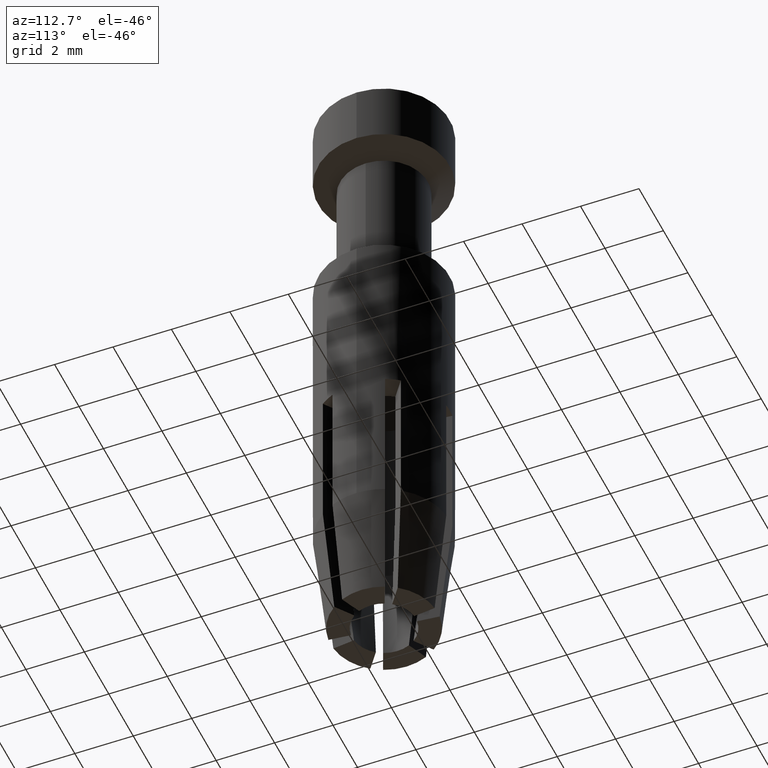
[diagram: clean part render]
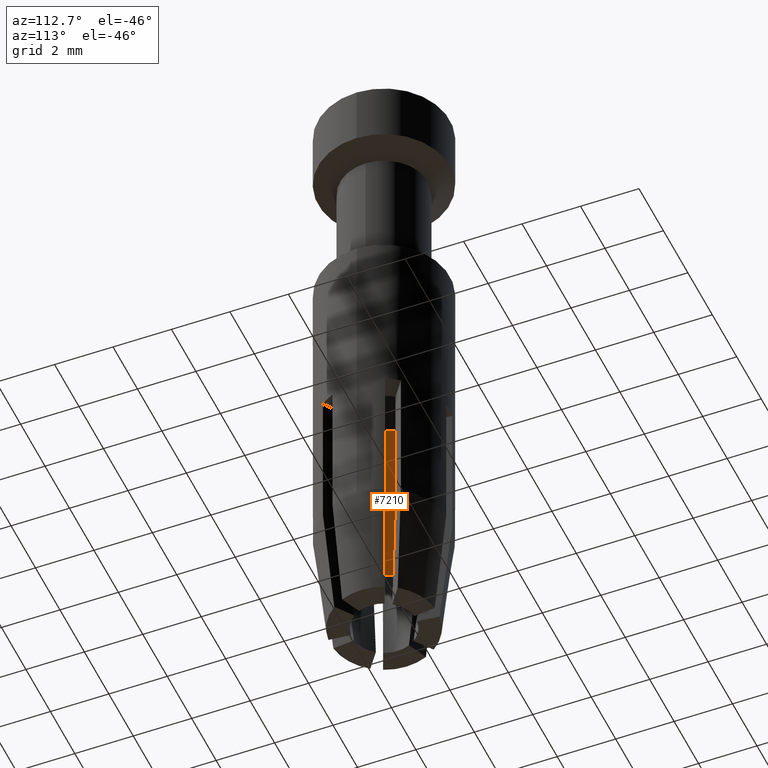
[diagram: same view with one face highlighted and labeled with its STEP entity id]
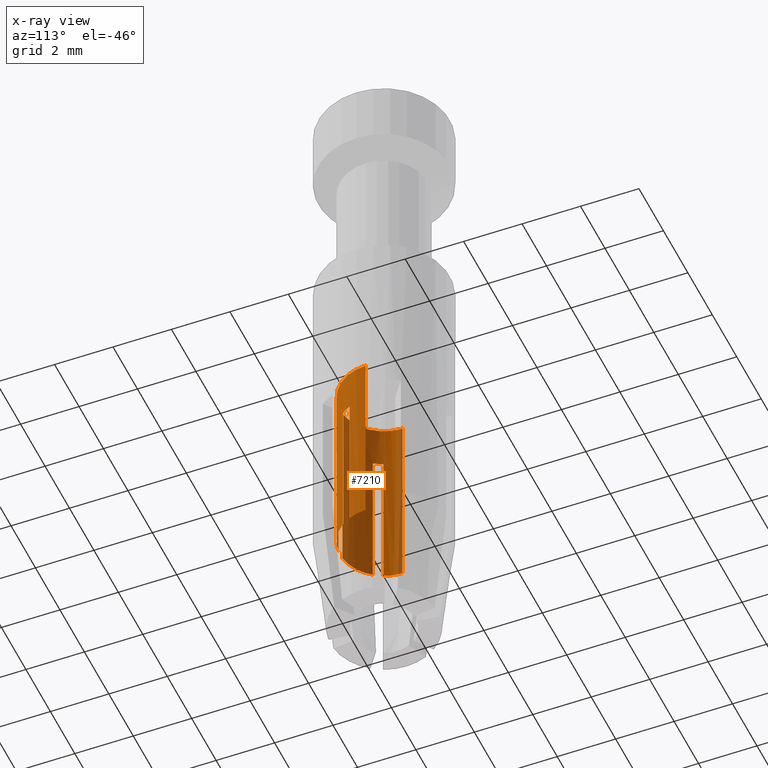
[diagram: x-ray of the same camera — body ghosted, the highlighted face saturated]
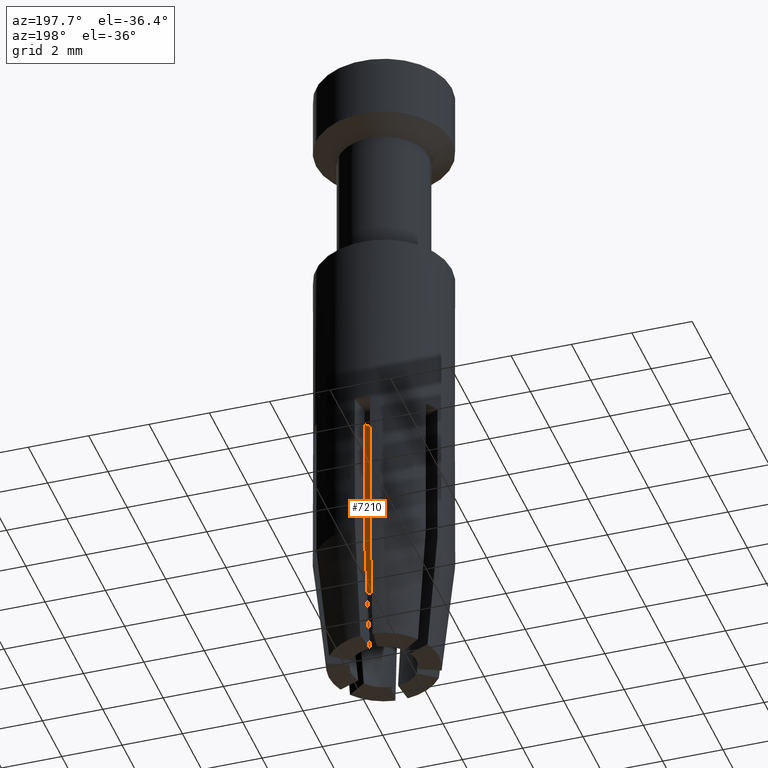
[diagram: same view with one face highlighted and labeled with its STEP entity id]
A machine part, auxiliary view. The second image highlights one B-rep face of the part: STEP entity #7210.
The next image is the same camera in x-ray: the body ghosted, the highlighted face saturated — about 48% of this face is hidden behind the body in this view.
A second angle (auxiliary view) of the same face is appended — the face is thin or edge-on in the first view.
In plain terms, the highlighted cylindrical surface (partial cylindrical patch) has radius 1.5 mm, axis along (0, -0, 1).
Its self-contained STEP definition (entity closure, byte-faithful):
#3600=CARTESIAN_POINT('',(29.5428948845975,41.2843564402027,18.5));
#3610=VERTEX_POINT('',#3600);
#3690=CARTESIAN_POINT('',(29.3762282179308,41.5730315747975,18.5));
#3700=VERTEX_POINT('',#3690);
#3730=CARTESIAN_POINT('',(30.750556,42.17405,18.5));
#3740=DIRECTION('',(0.,0.,-1.));
#3750=DIRECTION('',(-1.,0.,0.));
#3760=AXIS2_PLACEMENT_3D('',#3730,#3740,#3750);
#3770=CIRCLE('',#3760,1.5);
#3780=EDGE_CURVE('',#3610,#3700,#3770,.T.);
#3990=CARTESIAN_POINT('',(32.1248837820691,41.5730315747975,18.5));
#4000=VERTEX_POINT('',#3990);
#4080=CARTESIAN_POINT('',(31.9582171154025,41.2843564402027,18.5));
#4090=VERTEX_POINT('',#4080);
#4120=CARTESIAN_POINT('',(30.750556,42.17405,18.5));
#4130=DIRECTION('',(0.,0.,-1.));
#4140=DIRECTION('',(-1.,0.,0.));
#4150=AXIS2_PLACEMENT_3D('',#4120,#4130,#4140);
#4160=CIRCLE('',#4150,1.5);
#4170=EDGE_CURVE('',#4000,#4090,#4160,.T.);
#4400=CARTESIAN_POINT('',(30.5838893333333,40.6833380150002,
23.5699724410222));
#4410=VERTEX_POINT('',#4400);
#4440=CARTESIAN_POINT('',(30.5838893333333,40.6833380150001,
20.284986220511));
#4450=DIRECTION('',(0.,0.,-1.));
#4460=VECTOR('',#4450,1.);
#4470=LINE('',#4440,#4460);
#4480=CARTESIAN_POINT('',(30.5838893333333,40.6833380150001,18.5));
#4490=VERTEX_POINT('',#4480);
#4500=EDGE_CURVE('',#4410,#4490,#4470,.T.);
#6030=CARTESIAN_POINT('',(30.750556,42.17405,23.5699724410221));
#6040=DIRECTION('',(0.,0.,1.));
#6050=DIRECTION('',(-1.,0.,0.));
#6060=AXIS2_PLACEMENT_3D('',#6030,#6040,#6050);
#6070=CIRCLE('',#6060,1.5);
#6080=CARTESIAN_POINT('',(29.250556,42.17405,23.5699724410221));
#6090=VERTEX_POINT('',#6080);
#6120=CARTESIAN_POINT('',(29.3762282179309,41.5730315747975,
23.5699724410221));
#6130=VERTEX_POINT('',#6120);
#6140=EDGE_CURVE('',#6090,#6130,#6070,.T.);
#6320=CARTESIAN_POINT('',(30.750556,42.17405,20.284986220511));
#6330=DIRECTION('',(0.,0.,-1.));
#6340=DIRECTION('',(-1.,0.,0.));
#6350=AXIS2_PLACEMENT_3D('',#6320,#6330,#6340);
#6360=CYLINDRICAL_SURFACE('',#6350,1.5);
#6370=CARTESIAN_POINT('',(32.250556,42.17405,20.284986220511));
#6380=DIRECTION('',(0.,0.,-1.));
#6390=VECTOR('',#6380,1.);
#6400=LINE('',#6370,#6390);
#6410=CARTESIAN_POINT('',(32.250556,42.17405,23.5699724410221));
#6420=VERTEX_POINT('',#6410);
#6430=CARTESIAN_POINT('',(32.250556,42.17405,16.9999999999999));
#6440=VERTEX_POINT('',#6430);
#6450=EDGE_CURVE('',#6420,#6440,#6400,.T.);
#6460=ORIENTED_EDGE('',*,*,#6450,.T.);
#6470=CARTESIAN_POINT('',(32.1248837820691,41.5730315747975,
23.5699724410221));
#6480=VERTEX_POINT('',#6470);
#6490=EDGE_CURVE('',#6480,#6420,#6070,.T.);
#6500=ORIENTED_EDGE('',*,*,#6490,.T.);
#6510=CARTESIAN_POINT('',(32.1248837820691,41.5730315747975,
20.284986220511));
#6520=DIRECTION('',(0.,0.,-1.));
#6530=VECTOR('',#6520,1.);
#6540=LINE('',#6510,#6530);
#6550=EDGE_CURVE('',#6480,#4000,#6540,.T.);
#6560=ORIENTED_EDGE('',*,*,#6550,.F.);
#6570=ORIENTED_EDGE('',*,*,#4170,.F.);
#6580=CARTESIAN_POINT('',(31.9582171154025,41.2843564402027,
20.284986220511));
#6590=DIRECTION('',(0.,0.,-1.));
#6600=VECTOR('',#6590,1.);
#6610=LINE('',#6580,#6600);
#6620=CARTESIAN_POINT('',(31.9582171154025,41.2843564402027,
23.5699724410221));
#6630=VERTEX_POINT('',#6620);
#6640=EDGE_CURVE('',#6630,#4090,#6610,.T.);
#6650=ORIENTED_EDGE('',*,*,#6640,.T.);
#6660=CARTESIAN_POINT('',(30.9172226666667,40.6833380150001,
23.5699724410221));
#6670=VERTEX_POINT('',#6660);
#6680=EDGE_CURVE('',#6670,#6630,#6070,.T.);
#6690=ORIENTED_EDGE('',*,*,#6680,.T.);
#6700=CARTESIAN_POINT('',(30.9172226666667,40.6833380150001,
20.284986220511));
#6710=DIRECTION('',(0.,0.,-1.));
#6720=VECTOR('',#6710,1.);
#6730=LINE('',#6700,#6720);
#6740=CARTESIAN_POINT('',(30.9172226666667,40.6833380150001,18.5));
#6750=VERTEX_POINT('',#6740);
#6760=EDGE_CURVE('',#6670,#6750,#6730,.T.);
#6770=ORIENTED_EDGE('',*,*,#6760,.F.);
#6780=CARTESIAN_POINT('',(30.750556,42.17405,18.5));
#6790=DIRECTION('',(0.,0.,-1.));
#6800=DIRECTION('',(-1.,0.,0.));
#6810=AXIS2_PLACEMENT_3D('',#6780,#6790,#6800);
#6820=CIRCLE('',#6810,1.5);
#6830=EDGE_CURVE('',#6750,#4490,#6820,.T.);
#6840=ORIENTED_EDGE('',*,*,#6830,.F.);
#6850=ORIENTED_EDGE('',*,*,#4500,.T.);
#6860=CARTESIAN_POINT('',(29.5428948845975,41.2843564402027,
23.5699724410222));
#6870=VERTEX_POINT('',#6860);
#6880=EDGE_CURVE('',#6870,#4410,#6070,.T.);
#6890=ORIENTED_EDGE('',*,*,#6880,.T.);
#6900=CARTESIAN_POINT('',(29.5428948845975,41.2843564402027,
20.284986220511));
#6910=DIRECTION('',(0.,0.,-1.));
#6920=VECTOR('',#6910,1.);
#6930=LINE('',#6900,#6920);
#6940=EDGE_CURVE('',#6870,#3610,#6930,.T.);
#6950=ORIENTED_EDGE('',*,*,#6940,.F.);
#6960=ORIENTED_EDGE('',*,*,#3780,.F.);
#6970=CARTESIAN_POINT('',(29.3762282179309,41.5730315747975,
20.284986220511));
#6980=DIRECTION('',(0.,0.,-1.));
#6990=VECTOR('',#6980,1.);
#7000=LINE('',#6970,#6990);
#7010=EDGE_CURVE('',#6130,#3700,#7000,.T.);
#7020=ORIENTED_EDGE('',*,*,#7010,.T.);
#7030=ORIENTED_EDGE('',*,*,#6140,.T.);
#7040=CARTESIAN_POINT('',(29.250556,42.17405,20.284986220511));
#7050=DIRECTION('',(0.,0.,-1.));
#7060=VECTOR('',#7050,1.);
#7070=LINE('',#7040,#7060);
#7080=CARTESIAN_POINT('',(29.250556,42.17405,16.9999999999999));
#7090=VERTEX_POINT('',#7080);
#7100=EDGE_CURVE('',#6090,#7090,#7070,.T.);
#7110=ORIENTED_EDGE('',*,*,#7100,.F.);
#7120=CARTESIAN_POINT('',(30.750556,42.17405,16.9999999999999));
#7130=DIRECTION('',(0.,0.,1.));
#7140=DIRECTION('',(1.,0.,0.));
#7150=AXIS2_PLACEMENT_3D('',#7120,#7130,#7140);
#7160=CIRCLE('',#7150,1.49999999999985);
#7170=EDGE_CURVE('',#7090,#6440,#7160,.T.);
#7180=ORIENTED_EDGE('',*,*,#7170,.F.);
#7190=EDGE_LOOP('',(#7180,#7110,#7030,#7020,#6960,#6950,#6890,#6850,
#6840,#6770,#6690,#6650,#6570,#6560,#6500,#6460));
#7200=FACE_OUTER_BOUND('',#7190,.T.);
#7210=ADVANCED_FACE('',(#7200),#6360,.F.);